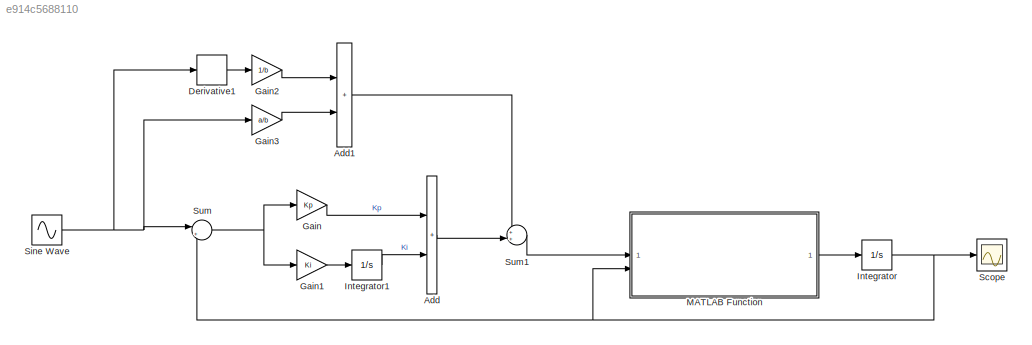
MODEL slx_e914c5688110
KIND model
CONFIG AbsTol = auto
CONFIG EnableMultiTasking = off
CONFIG FixedStep = 0.001
CONFIG MaxStep = auto
CONFIG MinStep = auto
CONFIG RelTol = 1e-3
CONFIG SampleTimeConstraint = Unconstrained
CONFIG SolverName = ode1
CONFIG StartTime = 0.0
CONFIG StopTime = 10.0
BLOCK [Sum] Add
  IconShape = rectangular
BLOCK [Sum] Add1
  IconShape = rectangular
BLOCK [Derivative] Derivative1
BLOCK [Gain] Gain
  Gain = Kp
BLOCK [Gain] Gain1
  Gain = Ki
BLOCK [Gain] Gain2
  Gain = 1/b
BLOCK [Gain] Gain3
  Gain = a/b
BLOCK [Integrator] Integrator
BLOCK [Integrator] Integrator1
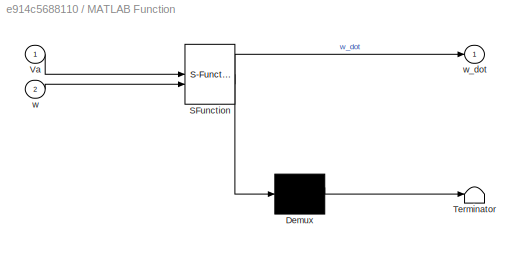
BLOCK [SubSystem] MATLAB Function
  ErrorFcn = Stateflow.Translate.translate
  LibrarySourceBlock = simulink/User-Defined\nFunctions/MATLAB Function
  PermitHierarchicalResolution = ExplicitOnly
  SFBlockType = MATLAB Function
  TreatAsAtomicUnit = on
BLOCK [Demux] MATLAB Function/ Demux 
  Outputs = 1
BLOCK [S-Function] MATLAB Function/ SFunction 
  EnableBusSupport = on
  FunctionName = sf_sfun
  PortCounts = [2 2]
  SFcnIsStateOwnerBlock = off
  SFunctionDeploymentMode = off
  Tag = Stateflow S-Function 2
BLOCK [Terminator] MATLAB Function/ Terminator 
BLOCK [Inport] MATLAB Function/Va
BLOCK [Inport] MATLAB Function/w
  Port = 2
BLOCK [Outport] MATLAB Function/w_dot
BLOCK [Scope] Scope
  Floating = off
  NumInputPorts = 1
  ScopeSpecificationString = Simulink.scopes.TimeScopeBlockCfg('CurrentConfiguration', extmgr.ConfigurationSet(extmgr.Configuration('Core','General UI',true),extmgr.Configuration('Core','Source UI',true),extmgr.Configuration('Sources','WiredSimulink',true),extmgr.Configuration('Visuals','Time Domain',true,'SerializedDisplays',{struct('MinYLimReal','-11.07848','MaxYLimReal','12.5532','YLabelReal','','MinYLimMag','0.00000','Max...<+1402ch>
BLOCK [Sin] Sine Wave
  Amplitude = 10
  Frequency = 2*pi*4
  SampleTime = 0
BLOCK [Sum] Sum
  Inputs = |+-
BLOCK [Sum] Sum1
  Inputs = ++|
LINE Add1:1 -> Sum1:1
LINE Add:1 -> Sum1:2
LINE Derivative1:1 -> Gain2:1
LINE Gain1:1 -> Integrator1:1
LINE Gain2:1 -> Add1:1
LINE Gain3:1 -> Add1:2
LINE Gain:1 -> Add:1
LINE Integrator1:1 -> Add:2
NET Integrator:1 -> MATLAB Function:2, Scope:1, Sum:2
LINE MATLAB Function:1 -> Integrator:1
NET Sine Wave:1 -> Derivative1:1, Gain3:1, Sum:1
LINE Sum1:1 -> MATLAB Function:1
NET Sum:1 -> Gain1:1, Gain:1
note: NET lines group one-source signal fan-out (src -> all destinations, sorted); 1:1 wires keep LINE
CHART MATLAB Function states=1 transitions=1
  STATE_LABEL 'eML_blk_kernel()'
  STATE_LABEL 'SCRIPT:\nfunction w_dot = fcn(Va,w)\n\na = 10; \nb = 25; \nw_dot = -a*w+b*Va;\n'
CHART  states=0 transitions=0
